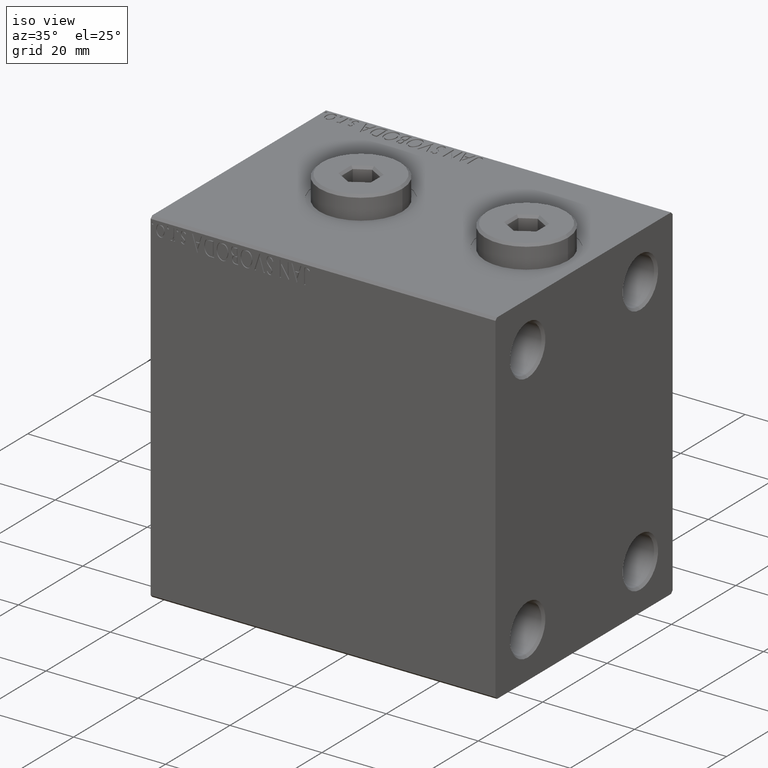
[diagram: clean part render]
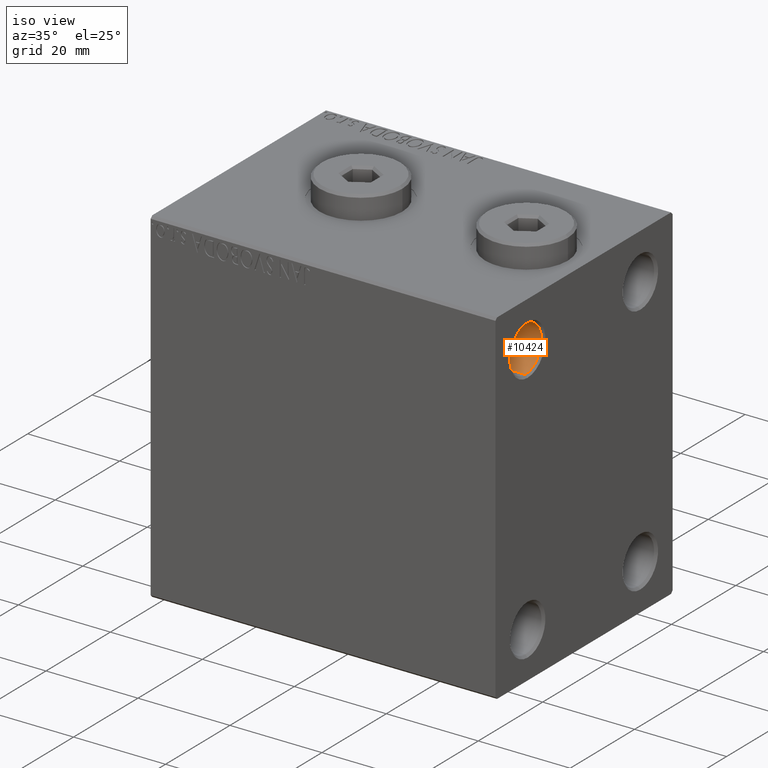
[diagram: same view with one face highlighted and labeled with its STEP entity id]
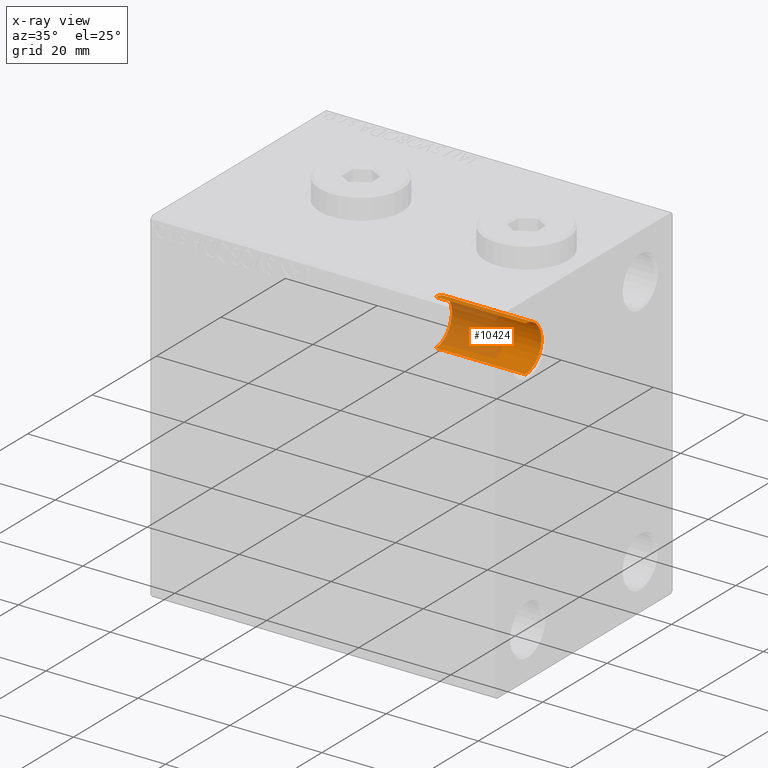
[diagram: x-ray of the same camera — body ghosted, the highlighted face saturated]
A machine part, iso view. The second image highlights one B-rep face of the part: STEP entity #10424.
The next image is the same camera in x-ray: the body ghosted, the highlighted face saturated — about 49% of this face is hidden behind the body in this view.
In plain terms, the highlighted cylindrical surface (edge-blend (fillet) strip) has radius 5 mm, axis along (1, 0, 0).
Its self-contained STEP definition (entity closure, byte-faithful):
#1799 = CIRCLE ( 'NONE', #34180, 4.999999999999997335 ) ;
#3771 = CIRCLE ( 'NONE', #11144, 4.999999999999993783 ) ;
#4753 = LINE ( 'NONE', #43002, #17697 ) ;
#5088 = CARTESIAN_POINT ( 'NONE',  ( 74.49999999999997158, -17.50000000000000000, 32.50000000000000000 ) ) ;
#5228 = VERTEX_POINT ( 'NONE', #12743 ) ;
#5565 = VERTEX_POINT ( 'NONE', #5088 ) ;
#6242 = VERTEX_POINT ( 'NONE', #34359 ) ;
#6687 = EDGE_CURVE ( 'NONE', #6242, #5565, #13755, .T. ) ;
#9613 = VECTOR ( 'NONE', #27335, 1000.000000000000000 ) ;
#10424 = ADVANCED_FACE ( 'NONE', ( #28480 ), #38180, .F. ) ;
#10550 = CARTESIAN_POINT ( 'NONE',  ( 75.00000000000000000, -17.50000000000000000, 27.50000000000000000 ) ) ;
#11144 = AXIS2_PLACEMENT_3D ( 'NONE', #31281, #27145, #13802 ) ;
#12260 = EDGE_CURVE ( 'NONE', #5565, #5228, #1799, .T. ) ;
#12743 = CARTESIAN_POINT ( 'NONE',  ( 74.49999999999997158, -17.50000000000000000, 22.50000000000000355 ) ) ;
#12924 = ORIENTED_EDGE ( 'NONE', *, *, #33934, .T. ) ;
#13755 = LINE ( 'NONE', #31237, #9613 ) ;
#13802 = DIRECTION ( 'NONE',  ( 0.000000000000000000, 0.000000000000000000, 1.000000000000000000 ) ) ;
#13966 = CARTESIAN_POINT ( 'NONE',  ( 74.49999999999997158, -17.50000000000000000, 27.50000000000000000 ) ) ;
#16270 = ORIENTED_EDGE ( 'NONE', *, *, #12260, .F. ) ;
#17697 = VECTOR ( 'NONE', #22467, 1000.000000000000000 ) ;
#17864 = DIRECTION ( 'NONE',  ( 0.000000000000000000, 0.000000000000000000, -1.000000000000000000 ) ) ;
#21065 = VERTEX_POINT ( 'NONE', #40640 ) ;
#22467 = DIRECTION ( 'NONE',  ( 1.000000000000000000, -0.000000000000000000, -0.000000000000000000 ) ) ;
#23085 = ORIENTED_EDGE ( 'NONE', *, *, #6687, .F. ) ;
#25000 = DIRECTION ( 'NONE',  ( -1.000000000000000000, 0.000000000000000000, 0.000000000000000000 ) ) ;
#27043 = ORIENTED_EDGE ( 'NONE', *, *, #34374, .T. ) ;
#27145 = DIRECTION ( 'NONE',  ( -1.000000000000000000, 0.000000000000000000, 0.000000000000000000 ) ) ;
#27335 = DIRECTION ( 'NONE',  ( 1.000000000000000000, -0.000000000000000000, -0.000000000000000000 ) ) ;
#28480 = FACE_OUTER_BOUND ( 'NONE', #40338, .T. ) ;
#31237 = CARTESIAN_POINT ( 'NONE',  ( 75.00000000000000000, -17.50000000000000000, 32.50000000000000000 ) ) ;
#31281 = CARTESIAN_POINT ( 'NONE',  ( 54.99999999999999289, -17.50000000000000000, 27.50000000000000000 ) ) ;
#33934 = EDGE_CURVE ( 'NONE', #21065, #5228, #4753, .T. ) ;
#34180 = AXIS2_PLACEMENT_3D ( 'NONE', #13966, #25000, #17864 ) ;
#34359 = CARTESIAN_POINT ( 'NONE',  ( 54.99999999999999289, -17.50000000000000000, 32.49999999999999289 ) ) ;
#34374 = EDGE_CURVE ( 'NONE', #6242, #21065, #3771, .T. ) ;
#38180 = CYLINDRICAL_SURFACE ( 'NONE', #44444, 5.000000000000000888 ) ;
#38873 = DIRECTION ( 'NONE',  ( 1.000000000000000000, -0.000000000000000000, -0.000000000000000000 ) ) ;
#40338 = EDGE_LOOP ( 'NONE', ( #27043, #12924, #16270, #23085 ) ) ;
#40640 = CARTESIAN_POINT ( 'NONE',  ( 54.99999999999999289, -17.50000000000000000, 22.50000000000000711 ) ) ;
#41661 = DIRECTION ( 'NONE',  ( 0.000000000000000000, 0.000000000000000000, 1.000000000000000000 ) ) ;
#43002 = CARTESIAN_POINT ( 'NONE',  ( 75.00000000000000000, -17.50000000000000000, 22.50000000000000355 ) ) ;
#44444 = AXIS2_PLACEMENT_3D ( 'NONE', #10550, #38873, #41661 ) ;